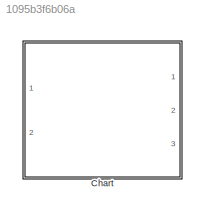
MODEL slx_1095b3f6b06a
KIND model
CONFIG AbsTol = auto
CONFIG EnableMultiTasking = on
CONFIG FixedStep = 1e-3
CONFIG MaxStep = auto
CONFIG MinStep = auto
CONFIG RelTol = 1e-3
CONFIG SampleTimeConstraint = Unconstrained
CONFIG Solver = FixedStepAuto
CONFIG SolverName = FixedStepAuto
CONFIG StartTime = 0.0
CONFIG StopTime = 10.0
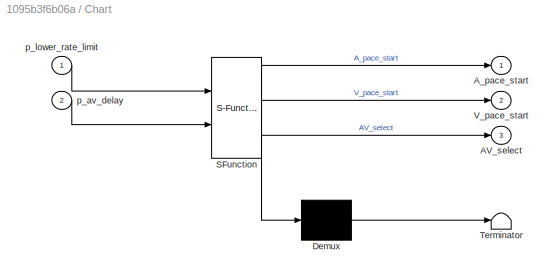
BLOCK [SubSystem] Chart
  ErrorFcn = Stateflow.Translate.translate
  PermitHierarchicalResolution = ExplicitOnly
  Ports = [2, 3]
  RequestExecContextInheritance = off
  SFBlockType = Chart
  TreatAsAtomicUnit = on
BLOCK [Demux] Chart/ Demux 
  Outputs = 1
  Ports = [1, 1]
BLOCK [S-Function] Chart/ SFunction 
  EnableBusSupport = off
  FunctionName = sf_sfun
  PortCounts = [2 4]
  Ports = [2, 4]
  SFcnIsStateOwnerBlock = off
  SFunctionDeploymentMode = off
  Tag = Stateflow S-Function 3
BLOCK [Terminator] Chart/ Terminator 
BLOCK [Outport] Chart/AV_select
  Port = 3
BLOCK [Outport] Chart/A_pace_start
BLOCK [Outport] Chart/V_pace_start
  Port = 2
BLOCK [Inport] Chart/p_av_delay
  Port = 2
BLOCK [Inport] Chart/p_lower_rate_limit
CHART Chart states=2 transitions=3
  STATE_LABEL 'PACE_VENT\nentry:\nV_pace_start = 1;\non after(1, msec):\nV_pace_start = 0;\nAV_select = 0;'
  STATE_LABEL 'PACE_ATR\nentry:\nA_pace_start = 1;\non after(1, msec):\nA_pace_start = 0;\nAV_select = 1;'
CHART  states=0 transitions=0
